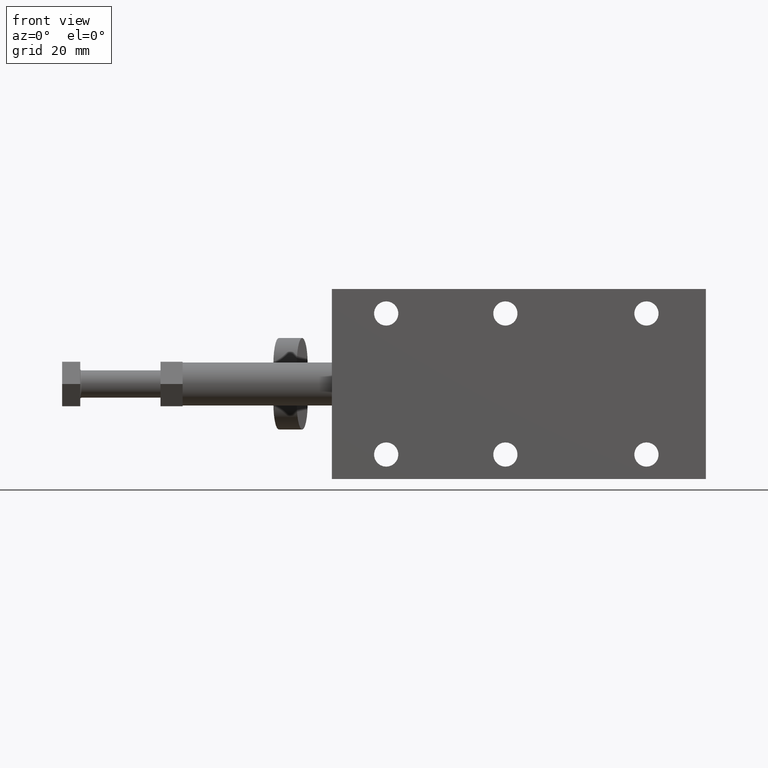
[diagram: clean part render]
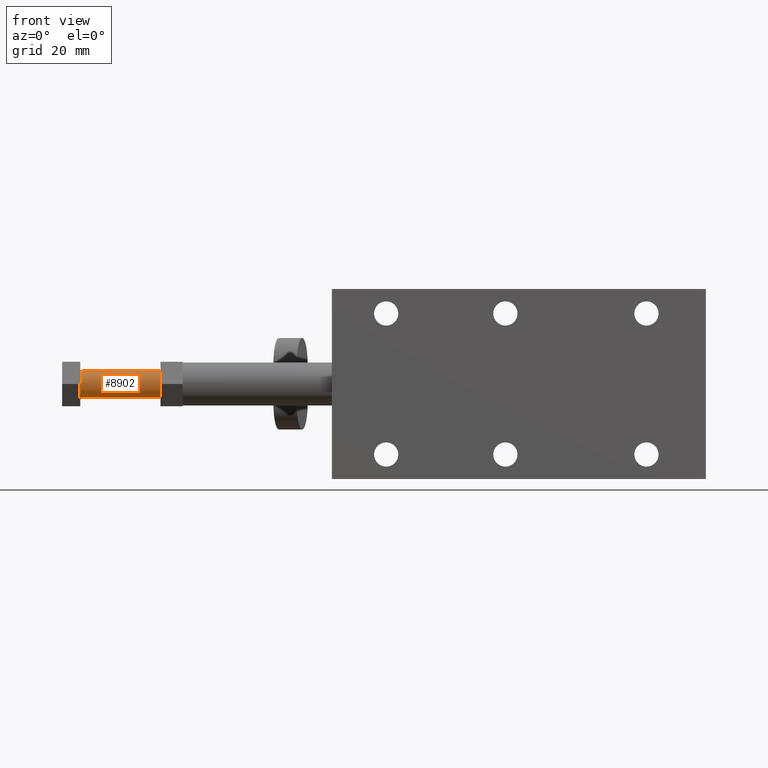
[diagram: same view with one face highlighted and labeled with its STEP entity id]
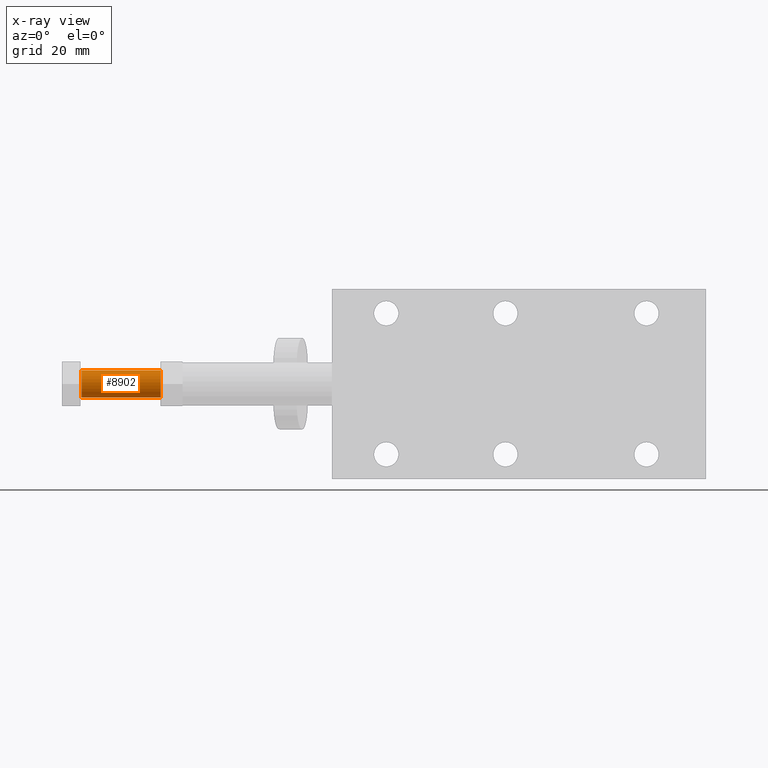
[diagram: x-ray of the same camera — body ghosted, the highlighted face saturated]
A machine part, front view. The second image highlights one B-rep face of the part: STEP entity #8902.
The next image is the same camera in x-ray: the body ghosted, the highlighted face saturated — about 0% of this face is hidden behind the body in this view.
In plain terms, the highlighted cylindrical surface (edge-blend (fillet) strip) has radius 4 mm, axis along (-1, -0, -0).
Its self-contained STEP definition (entity closure, byte-faithful):
#121 = DIRECTION ( 'NONE',  ( -1.000000000000000000, -0.0000000000000000000, -0.0000000000000000000 ) ) ;
#200 = CYLINDRICAL_SURFACE ( 'NONE', #592, 4.000000000000000000 ) ;
#592 = AXIS2_PLACEMENT_3D ( 'NONE', #8958, #6207, #6890 ) ;
#1028 = CARTESIAN_POINT ( 'NONE',  ( -104.9349217502493400, 17.50000000000000000, -1.117108593694364700E-014 ) ) ;
#1452 = VERTEX_POINT ( 'NONE', #6039 ) ;
#1587 = AXIS2_PLACEMENT_3D ( 'NONE', #1028, #5956, #1746 ) ;
#1692 = EDGE_LOOP ( 'NONE', ( #4999, #6945, #2424, #3183 ) ) ;
#1746 = DIRECTION ( 'NONE',  ( 0.0000000000000000000, 0.0000000000000000000, -1.000000000000000000 ) ) ;
#1900 = CARTESIAN_POINT ( 'NONE',  ( -128.0349217502501300, 17.50000000000000000, -1.117108593694364700E-014 ) ) ;
#2190 = CARTESIAN_POINT ( 'NONE',  ( -133.7349217502501500, 17.50000000000000000, -4.000000000000011500 ) ) ;
#2424 = ORIENTED_EDGE ( 'NONE', *, *, #8536, .T. ) ;
#2508 = VECTOR ( 'NONE', #5727, 1000.000000000000000 ) ;
#2608 = DIRECTION ( 'NONE',  ( 0.0000000000000000000, 0.0000000000000000000, -1.000000000000000000 ) ) ;
#3183 = ORIENTED_EDGE ( 'NONE', *, *, #5948, .T. ) ;
#4001 = EDGE_CURVE ( 'NONE', #4933, #1452, #8144, .T. ) ;
#4386 = LINE ( 'NONE', #2190, #2508 ) ;
#4933 = VERTEX_POINT ( 'NONE', #4970 ) ;
#4970 = CARTESIAN_POINT ( 'NONE',  ( -104.9349217502493400, 17.50000000000000000, 3.999999999999988900 ) ) ;
#4999 = ORIENTED_EDGE ( 'NONE', *, *, #7999, .F. ) ;
#5017 = CARTESIAN_POINT ( 'NONE',  ( -133.7349217502501500, 17.50000000000000000, 3.999999999999988900 ) ) ;
#5727 = DIRECTION ( 'NONE',  ( -1.000000000000000000, -0.0000000000000000000, -0.0000000000000000000 ) ) ;
#5914 = LINE ( 'NONE', #5017, #6129 ) ;
#5948 = EDGE_CURVE ( 'NONE', #8281, #7647, #6375, .T. ) ;
#5956 = DIRECTION ( 'NONE',  ( 1.000000000000000000, 0.0000000000000000000, 0.0000000000000000000 ) ) ;
#6039 = CARTESIAN_POINT ( 'NONE',  ( -104.9349217502493400, 17.50000000000000000, -4.000000000000011500 ) ) ;
#6129 = VECTOR ( 'NONE', #121, 1000.000000000000000 ) ;
#6207 = DIRECTION ( 'NONE',  ( -1.000000000000000000, -0.0000000000000000000, -0.0000000000000000000 ) ) ;
#6375 = CIRCLE ( 'NONE', #7929, 4.000000000000000000 ) ;
#6794 = DIRECTION ( 'NONE',  ( 1.000000000000000000, 0.0000000000000000000, -0.0000000000000000000 ) ) ;
#6890 = DIRECTION ( 'NONE',  ( 0.0000000000000000000, 0.0000000000000000000, 1.000000000000000000 ) ) ;
#6945 = ORIENTED_EDGE ( 'NONE', *, *, #4001, .F. ) ;
#7444 = CARTESIAN_POINT ( 'NONE',  ( -128.0349217502501300, 17.50000000000000000, -4.000000000000011500 ) ) ;
#7621 = FACE_OUTER_BOUND ( 'NONE', #1692, .T. ) ;
#7647 = VERTEX_POINT ( 'NONE', #7444 ) ;
#7929 = AXIS2_PLACEMENT_3D ( 'NONE', #1900, #6794, #2608 ) ;
#7999 = EDGE_CURVE ( 'NONE', #1452, #7647, #4386, .T. ) ;
#8144 = CIRCLE ( 'NONE', #1587, 4.000000000000000000 ) ;
#8146 = CARTESIAN_POINT ( 'NONE',  ( -128.0349217502501300, 17.50000000000000000, 3.999999999999988900 ) ) ;
#8281 = VERTEX_POINT ( 'NONE', #8146 ) ;
#8536 = EDGE_CURVE ( 'NONE', #4933, #8281, #5914, .T. ) ;
#8902 = ADVANCED_FACE ( 'NONE', ( #7621 ), #200, .T. ) ;
#8958 = CARTESIAN_POINT ( 'NONE',  ( -133.7349217502501500, 17.50000000000000000, -1.117108593694364700E-014 ) ) ;